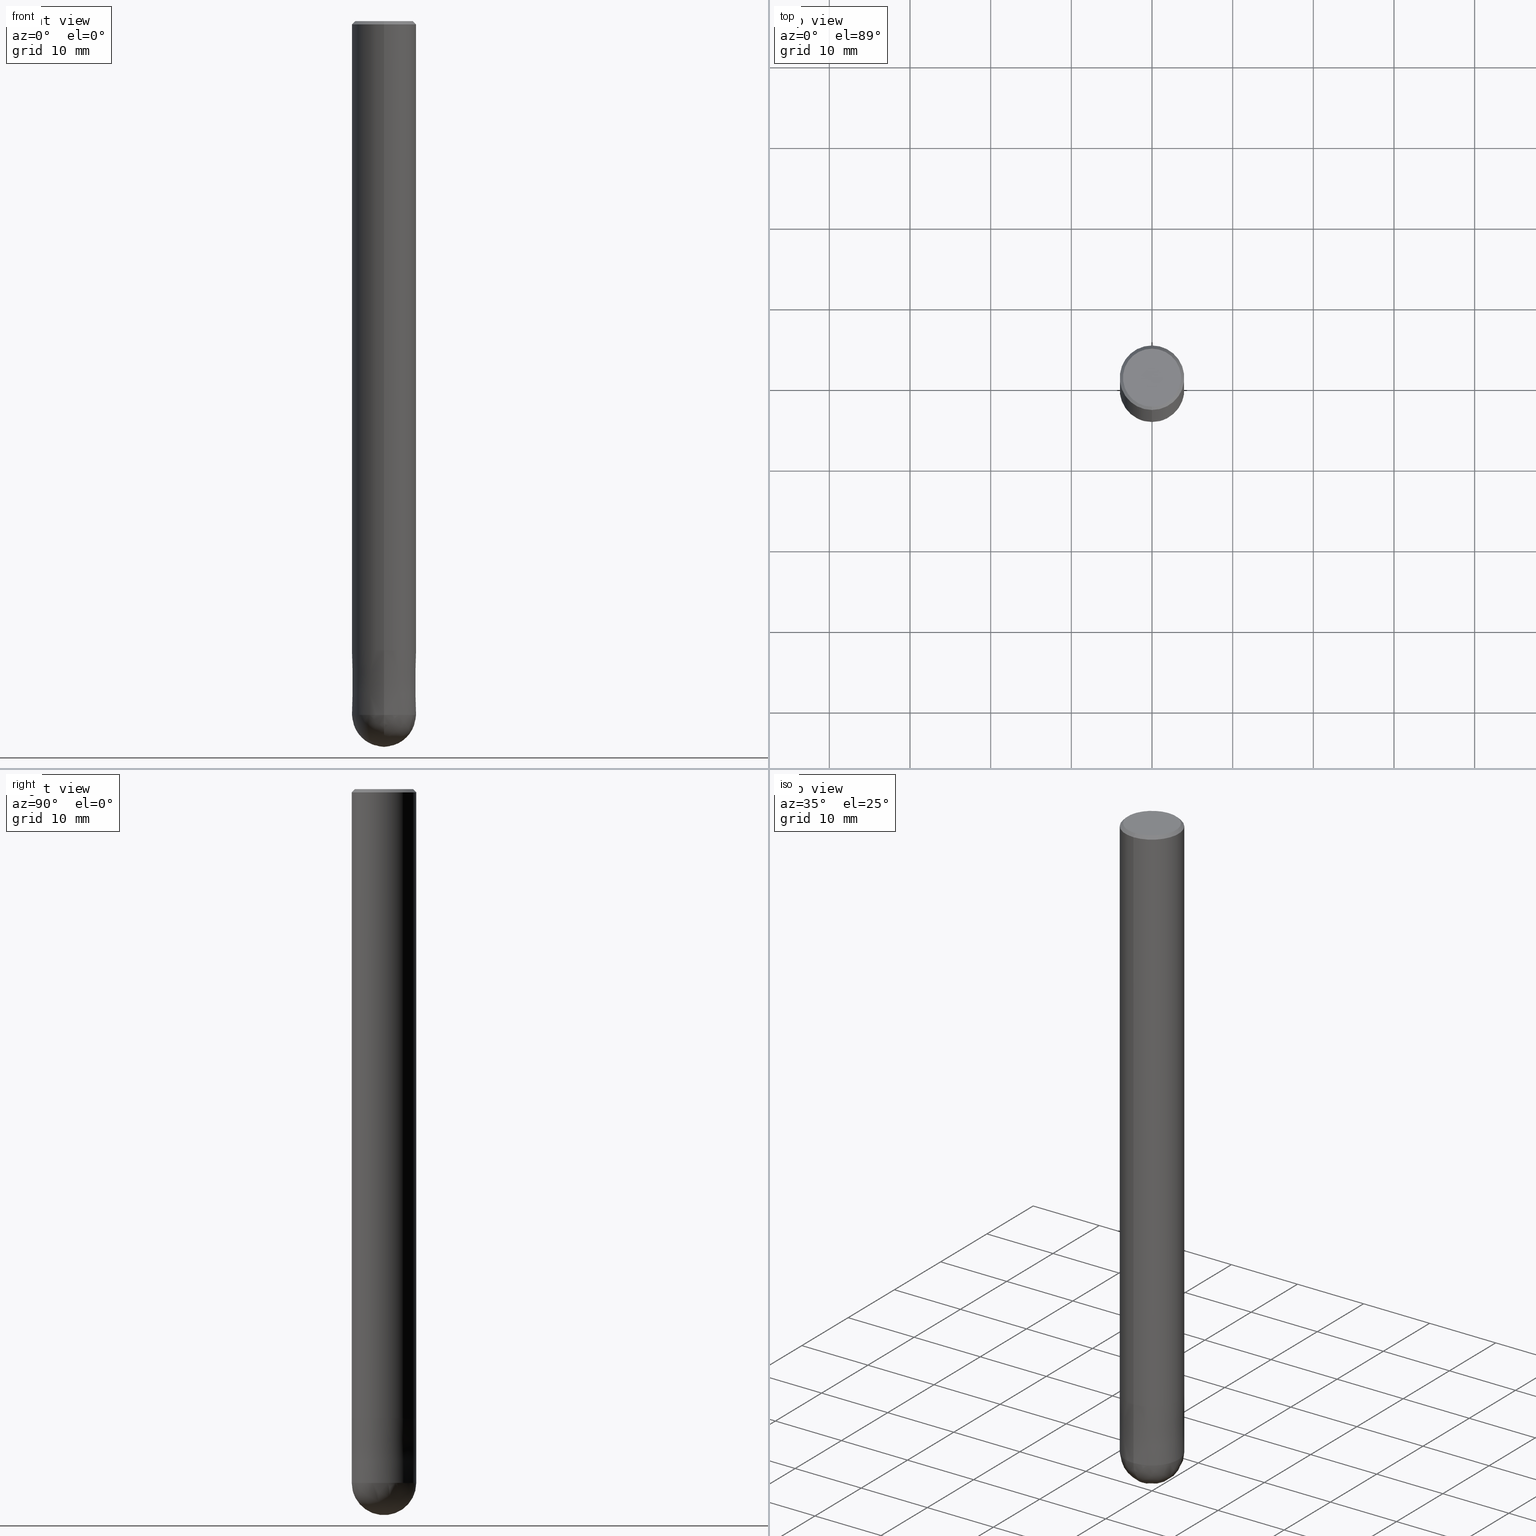
[diagram: canonical four-view strip — front | top / right | iso, engineering-drawing reading convention]
A machine part, canonical four-view strip (front | top / right | iso — engineering-drawing reading convention). The complete STEP part file that produces these views, byte-faithful:
ISO-10303-21;
HEADER;
FILE_DESCRIPTION(('no description'),'unknown implementation level');
FILE_NAME('HFB4080-1200-Huellk.stp','  ',('CIMSOURCE GmbH'),('CADClick - KiM GmbH - www.kimweb.de'),'unknown preprocess','ACIS','unknown authorization');
FILE_SCHEMA(('automotive_design'));
ENDSEC;
DATA;
#1=MECHANICAL_DESIGN_GEOMETRIC_PRESENTATION_REPRESENTATION(' ',(#10,#11,#12,#13,#14,#15,#16,#17,#18,#19,#20,#21,#22,#23,#24,#25,#26,#27,#28,#29,#30,#31,#32,#33,#34,#35,#36,#37,#38,#39,#40,#41,#42,#43,#44,#45,#46,#47),#6);
#2=PRODUCT_DEFINITION_CONTEXT('',#48,'design');
#3=APPLICATION_PROTOCOL_DEFINITION('INTERNATIONAL STANDARD','automotive_design',1994,#48);
#4=PRODUCT_CATEGORY_RELATIONSHIP('NONE','NONE',#49,#50);
#5=SHAPE_DEFINITION_REPRESENTATION(#51,#52);
#6= (GEOMETRIC_REPRESENTATION_CONTEXT(3)GLOBAL_UNCERTAINTY_ASSIGNED_CONTEXT((#55))GLOBAL_UNIT_ASSIGNED_CONTEXT((#57,#58,#59))REPRESENTATION_CONTEXT('NONE','WORKSPACE'));
#10=STYLED_ITEM('',(#61),#62);
#11=STYLED_ITEM('',(#63),#64);
#12=STYLED_ITEM('',(#65),#66);
#13=STYLED_ITEM('',(#67),#68);
#14=STYLED_ITEM('',(#69),#70);
#15=STYLED_ITEM('',(#71),#72);
#16=STYLED_ITEM('',(#73),#74);
#17=STYLED_ITEM('',(#75),#76);
#18=STYLED_ITEM('',(#77),#78);
#19=STYLED_ITEM('',(#79),#80);
#20=STYLED_ITEM('',(#81),#82);
#21=STYLED_ITEM('',(#83),#84);
#22=STYLED_ITEM('',(#85),#86);
#23=STYLED_ITEM('',(#87),#88);
#24=STYLED_ITEM('',(#89),#90);
#25=STYLED_ITEM('',(#91),#92);
#26=STYLED_ITEM('',(#93),#94);
#27=STYLED_ITEM('',(#95),#96);
#28=STYLED_ITEM('',(#97),#98);
#29=STYLED_ITEM('',(#99),#100);
#30=STYLED_ITEM('',(#101),#102);
#31=STYLED_ITEM('',(#103),#104);
#32=STYLED_ITEM('',(#105),#106);
#33=STYLED_ITEM('',(#107),#108);
#34=STYLED_ITEM('',(#109),#110);
#35=STYLED_ITEM('',(#111),#112);
#36=STYLED_ITEM('',(#113),#114);
#37=STYLED_ITEM('',(#115),#116);
#38=STYLED_ITEM('',(#117),#118);
#39=STYLED_ITEM('',(#119),#120);
#40=STYLED_ITEM('',(#121),#122);
#41=STYLED_ITEM('',(#123),#124);
#42=STYLED_ITEM('',(#125),#126);
#43=STYLED_ITEM('',(#127),#128);
#44=STYLED_ITEM('',(#129),#130);
#45=STYLED_ITEM('',(#131),#132);
#46=STYLED_ITEM('',(#133),#134);
#47=STYLED_ITEM('',(#135),#136);
#48=APPLICATION_CONTEXT(' ');
#49=PRODUCT_CATEGORY('part','NONE');
#50=PRODUCT_RELATED_PRODUCT_CATEGORY('detail',' ',(#137));
#51=PRODUCT_DEFINITION_SHAPE('NONE','NONE',#138);
#52=ADVANCED_BREP_SHAPE_REPRESENTATION('1',(#122,#139),#6);
#55=UNCERTAINTY_MEASURE_WITH_UNIT(LENGTH_MEASURE(1.0E-006),#57,'','');
#57= (CONVERSION_BASED_UNIT('MILLIMETRE',#142)LENGTH_UNIT()NAMED_UNIT(#145));
#58= (NAMED_UNIT(#147)PLANE_ANGLE_UNIT()SI_UNIT($,.RADIAN.));
#59= (NAMED_UNIT(#147)SOLID_ANGLE_UNIT()SI_UNIT($,.STERADIAN.));
#61=PRESENTATION_STYLE_ASSIGNMENT((#153));
#62=ADVANCED_FACE('',(#154,#155),#156,.T.);
#63=PRESENTATION_STYLE_ASSIGNMENT((#157));
#64=EDGE_CURVE('',#76,#74,#158,.T.);
#65=PRESENTATION_STYLE_ASSIGNMENT((#159));
#66=EDGE_CURVE('',#102,#100,#160,.T.);
#67=PRESENTATION_STYLE_ASSIGNMENT((#161));
#68=ADVANCED_FACE('',(#162),#163,.T.);
#69=PRESENTATION_STYLE_ASSIGNMENT((#164));
#70=ADVANCED_FACE('',(#165),#166,.T.);
#71=PRESENTATION_STYLE_ASSIGNMENT((#167));
#72=VERTEX_POINT('',#168);
#73=PRESENTATION_STYLE_ASSIGNMENT((#169));
#74=VERTEX_POINT('',#170);
#75=PRESENTATION_STYLE_ASSIGNMENT((#171));
#76=VERTEX_POINT('',#172);
#77=PRESENTATION_STYLE_ASSIGNMENT((#173));
#78=ADVANCED_FACE('',(#174),#175,.T.);
#79=PRESENTATION_STYLE_ASSIGNMENT((#176));
#80=VERTEX_POINT('',#177);
#81=PRESENTATION_STYLE_ASSIGNMENT((#178));
#82=VERTEX_POINT('',#179);
#83=PRESENTATION_STYLE_ASSIGNMENT((#180));
#84=EDGE_CURVE('',#72,#82,#181,.T.);
#85=PRESENTATION_STYLE_ASSIGNMENT((#182));
#86=EDGE_CURVE('',#74,#102,#183,.T.);
#87=PRESENTATION_STYLE_ASSIGNMENT((#184));
#88=EDGE_CURVE('',#128,#80,#185,.T.);
#89=PRESENTATION_STYLE_ASSIGNMENT((#186));
#90=ADVANCED_FACE('',(#187),#188,.T.);
#91=PRESENTATION_STYLE_ASSIGNMENT((#189));
#92=EDGE_CURVE('',#100,#76,#190,.T.);
#93=PRESENTATION_STYLE_ASSIGNMENT((#191));
#94=ADVANCED_FACE('',(#192),#193,.T.);
#95=PRESENTATION_STYLE_ASSIGNMENT((#194));
#96=ADVANCED_FACE('',(#195),#196,.T.);
#97=PRESENTATION_STYLE_ASSIGNMENT((#197));
#98=EDGE_CURVE('',#82,#72,#198,.T.);
#99=PRESENTATION_STYLE_ASSIGNMENT((#199));
#100=VERTEX_POINT('',#200);
#101=PRESENTATION_STYLE_ASSIGNMENT((#201));
#102=VERTEX_POINT('',#202);
#103=PRESENTATION_STYLE_ASSIGNMENT((#203));
#104=VERTEX_POINT('',#204);
#105=PRESENTATION_STYLE_ASSIGNMENT((#205));
#106=EDGE_CURVE('',#132,#104,#206,.T.);
#107=PRESENTATION_STYLE_ASSIGNMENT((#207));
#108=EDGE_CURVE('',#104,#132,#208,.T.);
#109=PRESENTATION_STYLE_ASSIGNMENT((#209));
#110=EDGE_CURVE('',#82,#80,#210,.T.);
#111=PRESENTATION_STYLE_ASSIGNMENT((#211));
#112=EDGE_CURVE('',#100,#102,#212,.T.);
#113=PRESENTATION_STYLE_ASSIGNMENT((#213));
#114=EDGE_CURVE('',#132,#100,#214,.T.);
#115=PRESENTATION_STYLE_ASSIGNMENT((#215));
#116=EDGE_CURVE('',#74,#76,#216,.T.);
#117=PRESENTATION_STYLE_ASSIGNMENT((#217));
#118=EDGE_CURVE('',#80,#128,#218,.T.);
#119=PRESENTATION_STYLE_ASSIGNMENT((#219));
#120=EDGE_CURVE('',#82,#72,#220,.T.);
#121=PRESENTATION_STYLE_ASSIGNMENT((#221));
#122=MANIFOLD_SOLID_BREP('1',#222);
#123=PRESENTATION_STYLE_ASSIGNMENT((#223));
#124=ADVANCED_FACE('',(#224),#225,.T.);
#125=PRESENTATION_STYLE_ASSIGNMENT((#226));
#126=ADVANCED_FACE('',(#227),#228,.T.);
#127=PRESENTATION_STYLE_ASSIGNMENT((#229));
#128=VERTEX_POINT('',#230);
#129=PRESENTATION_STYLE_ASSIGNMENT((#231));
#130=EDGE_CURVE('',#128,#72,#232,.T.);
#131=PRESENTATION_STYLE_ASSIGNMENT((#233));
#132=VERTEX_POINT('',#234);
#133=PRESENTATION_STYLE_ASSIGNMENT((#235));
#134=ADVANCED_FACE('',(#236),#237,.T.);
#135=PRESENTATION_STYLE_ASSIGNMENT((#238));
#136=EDGE_CURVE('',#102,#104,#239,.T.);
#137=PRODUCT('1','1','PART-1-DESC',(#240));
#138=PRODUCT_DEFINITION('NONE','NONE',#241,#2);
#139=AXIS2_PLACEMENT_3D('',#242,#243,#244);
#142=LENGTH_MEASURE_WITH_UNIT(LENGTH_MEASURE(1.0),#245);
#145=DIMENSIONAL_EXPONENTS(1.0,0.0,0.0,0.0,0.0,0.0,0.0);
#147=DIMENSIONAL_EXPONENTS(0.0,0.0,0.0,0.0,0.0,0.0,0.0);
#153=SURFACE_STYLE_USAGE(.BOTH.,#246);
#154=FACE_OUTER_BOUND('',#247,.T.);
#155=FACE_BOUND('',#248,.T.);
#156=PLANE('',#249);
#157=CURVE_STYLE('',#250,POSITIVE_LENGTH_MEASURE(1.0E-006),#251);
#158=CIRCLE('',#252,4.0);
#159=CURVE_STYLE('',#253,POSITIVE_LENGTH_MEASURE(1.0E-006),#254);
#160=CIRCLE('',#255,4.0);
#161=SURFACE_STYLE_USAGE(.BOTH.,#256);
#162=FACE_OUTER_BOUND('',#257,.T.);
#163=SPHERICAL_SURFACE('',#258,4.00000000000001);
#164=SURFACE_STYLE_USAGE(.BOTH.,#259);
#165=FACE_OUTER_BOUND('',#260,.T.);
#166=SPHERICAL_SURFACE('',#261,4.00000000000001);
#167=POINT_STYLE(' ',#262,POSITIVE_LENGTH_MEASURE(1.0E-006),#263);
#168=CARTESIAN_POINT('',(0.0,4.0,-86.0));
#169=POINT_STYLE(' ',#264,POSITIVE_LENGTH_MEASURE(1.0E-006),#265);
#170=CARTESIAN_POINT('',(4.89842541528951E-016,-4.0,-78.0));
#171=POINT_STYLE(' ',#266,POSITIVE_LENGTH_MEASURE(1.0E-006),#267);
#172=CARTESIAN_POINT('',(0.0,4.0,-78.0));
#173=SURFACE_STYLE_USAGE(.BOTH.,#268);
#174=FACE_OUTER_BOUND('',#269,.T.);
#175=CONICAL_SURFACE('',#270,3.8,0.785398163397441);
#176=POINT_STYLE(' ',#271,POSITIVE_LENGTH_MEASURE(1.0E-006),#272);
#177=CARTESIAN_POINT('',(4.89830295465413E-016,-3.9999,-78.0));
#178=POINT_STYLE(' ',#273,POSITIVE_LENGTH_MEASURE(1.0E-006),#274);
#179=CARTESIAN_POINT('',(4.89842541528951E-016,-4.0,-86.0));
#180=CURVE_STYLE('',#275,POSITIVE_LENGTH_MEASURE(1.0E-006),#276);
#181=CIRCLE('',#277,4.0);
#182=CURVE_STYLE('',#278,POSITIVE_LENGTH_MEASURE(1.0E-006),#279);
#183=LINE('',#280,#281);
#184=CURVE_STYLE('',#282,POSITIVE_LENGTH_MEASURE(1.0E-006),#283);
#185=CIRCLE('',#284,3.9999);
#186=SURFACE_STYLE_USAGE(.BOTH.,#285);
#187=FACE_OUTER_BOUND('',#286,.T.);
#188=CONICAL_SURFACE('',#287,3.99995,1.24999999993753E-005);
#189=CURVE_STYLE('',#288,POSITIVE_LENGTH_MEASURE(1.0E-006),#289);
#190=LINE('',#290,#291);
#191=SURFACE_STYLE_USAGE(.BOTH.,#292);
#192=FACE_OUTER_BOUND('',#293,.T.);
#193=CONICAL_SURFACE('',#294,3.99995,1.24999999993753E-005);
#194=SURFACE_STYLE_USAGE(.BOTH.,#295);
#195=FACE_OUTER_BOUND('',#296,.T.);
#196=CONICAL_SURFACE('',#297,3.8,0.785398163397441);
#197=CURVE_STYLE('',#298,POSITIVE_LENGTH_MEASURE(1.0E-006),#299);
#198=CIRCLE('',#300,4.00000000000001);
#199=POINT_STYLE(' ',#301,POSITIVE_LENGTH_MEASURE(1.0E-006),#302);
#200=CARTESIAN_POINT('',(0.0,4.0,-0.400000000000006));
#201=POINT_STYLE(' ',#303,POSITIVE_LENGTH_MEASURE(1.0E-006),#304);
#202=CARTESIAN_POINT('',(4.89842541528951E-016,-4.0,-0.400000000000006));
#203=POINT_STYLE(' ',#305,POSITIVE_LENGTH_MEASURE(1.0E-006),#306);
#204=CARTESIAN_POINT('',(4.40858287376056E-016,-3.6,0.0));
#205=CURVE_STYLE('',#307,POSITIVE_LENGTH_MEASURE(1.0E-006),#308);
#206=CIRCLE('',#309,3.6);
#207=CURVE_STYLE('',#310,POSITIVE_LENGTH_MEASURE(1.0E-006),#311);
#208=CIRCLE('',#312,3.6);
#209=CURVE_STYLE('',#313,POSITIVE_LENGTH_MEASURE(1.0E-006),#314);
#210=LINE('',#315,#316);
#211=CURVE_STYLE('',#317,POSITIVE_LENGTH_MEASURE(1.0E-006),#318);
#212=CIRCLE('',#319,4.0);
#213=CURVE_STYLE('',#320,POSITIVE_LENGTH_MEASURE(1.0E-006),#321);
#214=LINE('',#322,#323);
#215=CURVE_STYLE('',#324,POSITIVE_LENGTH_MEASURE(1.0E-006),#325);
#216=CIRCLE('',#326,4.0);
#217=CURVE_STYLE('',#327,POSITIVE_LENGTH_MEASURE(1.0E-006),#328);
#218=CIRCLE('',#329,3.9999);
#219=CURVE_STYLE('',#330,POSITIVE_LENGTH_MEASURE(1.0E-006),#331);
#220=CIRCLE('',#332,4.0);
#221=SURFACE_STYLE_USAGE(.BOTH.,#333);
#222=CLOSED_SHELL('',(#68,#94,#124,#96,#62,#126,#78,#134,#90,#70));
#223=SURFACE_STYLE_USAGE(.BOTH.,#334);
#224=FACE_OUTER_BOUND('',#335,.T.);
#225=CYLINDRICAL_SURFACE('',#336,4.0);
#226=SURFACE_STYLE_USAGE(.BOTH.,#337);
#227=FACE_OUTER_BOUND('',#338,.T.);
#228=PLANE('',#339);
#229=POINT_STYLE(' ',#340,POSITIVE_LENGTH_MEASURE(1.0E-006),#341);
#230=CARTESIAN_POINT('',(0.0,3.9999,-78.0));
#231=CURVE_STYLE('',#342,POSITIVE_LENGTH_MEASURE(1.0E-006),#343);
#232=LINE('',#344,#345);
#233=POINT_STYLE(' ',#346,POSITIVE_LENGTH_MEASURE(1.0E-006),#347);
#234=CARTESIAN_POINT('',(0.0,3.6,0.0));
#235=SURFACE_STYLE_USAGE(.BOTH.,#348);
#236=FACE_OUTER_BOUND('',#349,.T.);
#237=CYLINDRICAL_SURFACE('',#350,4.0);
#238=CURVE_STYLE('',#351,POSITIVE_LENGTH_MEASURE(1.0E-006),#352);
#239=LINE('',#353,#354);
#240=PRODUCT_CONTEXT('',#48,'mechanical');
#241=PRODUCT_DEFINITION_FORMATION_WITH_SPECIFIED_SOURCE(' ','NONE',#137,.NOT_KNOWN.);
#242=CARTESIAN_POINT('',(0.0,0.0,0.0));
#243=DIRECTION('',(0.0,0.0,1.0));
#244=DIRECTION('',(1.0,0.0,0.0));
#245= (NAMED_UNIT(#145)LENGTH_UNIT()SI_UNIT(.MILLI.,.METRE.));
#246=SURFACE_SIDE_STYLE('',(#356));
#247=EDGE_LOOP('',(#357,#358));
#248=EDGE_LOOP('',(#359,#360));
#249=AXIS2_PLACEMENT_3D('',#361,#362,#363);
#250=DRAUGHTING_PRE_DEFINED_CURVE_FONT('continuous');
#251=COLOUR_RGB('',0.498039215803146,0.498039215803146,0.498039215803146);
#252=AXIS2_PLACEMENT_3D('',#364,#365,#366);
#253=DRAUGHTING_PRE_DEFINED_CURVE_FONT('continuous');
#254=COLOUR_RGB('',0.498039215803146,0.498039215803146,0.498039215803146);
#255=AXIS2_PLACEMENT_3D('',#367,#368,#369);
#256=SURFACE_SIDE_STYLE('',(#370));
#257=EDGE_LOOP('',(#371,#372));
#258=AXIS2_PLACEMENT_3D('',#373,#374,#375);
#259=SURFACE_SIDE_STYLE('',(#376));
#260=EDGE_LOOP('',(#377,#378));
#261=AXIS2_PLACEMENT_3D('',#379,#380,#381);
#262=PRE_DEFINED_MARKER('');
#263=COLOUR_RGB('',0.800000011920929,0.800000011920929,0.800000011920929);
#264=PRE_DEFINED_MARKER('');
#265=COLOUR_RGB('',0.498039215803146,0.498039215803146,0.498039215803146);
#266=PRE_DEFINED_MARKER('');
#267=COLOUR_RGB('',0.498039215803146,0.498039215803146,0.498039215803146);
#268=SURFACE_SIDE_STYLE('',(#382));
#269=EDGE_LOOP('',(#383,#384,#385,#386));
#270=AXIS2_PLACEMENT_3D('',#387,#388,#389);
#271=PRE_DEFINED_MARKER('');
#272=COLOUR_RGB('',0.800000011920929,0.800000011920929,0.800000011920929);
#273=PRE_DEFINED_MARKER('');
#274=COLOUR_RGB('',0.800000011920929,0.800000011920929,0.800000011920929);
#275=DRAUGHTING_PRE_DEFINED_CURVE_FONT('continuous');
#276=COLOUR_RGB('',0.800000011920929,0.800000011920929,0.800000011920929);
#277=AXIS2_PLACEMENT_3D('',#390,#391,#392);
#278=DRAUGHTING_PRE_DEFINED_CURVE_FONT('continuous');
#279=COLOUR_RGB('',0.498039215803146,0.498039215803146,0.498039215803146);
#280=CARTESIAN_POINT('',(4.89842541528951E-016,-4.0,-39.2));
#281=VECTOR('',#393,1.0);
#282=DRAUGHTING_PRE_DEFINED_CURVE_FONT('continuous');
#283=COLOUR_RGB('',0.800000011920929,0.800000011920929,0.800000011920929);
#284=AXIS2_PLACEMENT_3D('',#394,#395,#396);
#285=SURFACE_SIDE_STYLE('',(#397));
#286=EDGE_LOOP('',(#398,#399,#400,#401));
#287=AXIS2_PLACEMENT_3D('',#402,#403,#404);
#288=DRAUGHTING_PRE_DEFINED_CURVE_FONT('continuous');
#289=COLOUR_RGB('',0.498039215803146,0.498039215803146,0.498039215803146);
#290=CARTESIAN_POINT('',(-4.89842541528951E-016,4.0,-39.2));
#291=VECTOR('',#405,1.0);
#292=SURFACE_SIDE_STYLE('',(#406));
#293=EDGE_LOOP('',(#407,#408,#409,#410));
#294=AXIS2_PLACEMENT_3D('',#411,#412,#413);
#295=SURFACE_SIDE_STYLE('',(#414));
#296=EDGE_LOOP('',(#415,#416,#417,#418));
#297=AXIS2_PLACEMENT_3D('',#419,#420,#421);
#298=DRAUGHTING_PRE_DEFINED_CURVE_FONT('continuous');
#299=COLOUR_RGB('',0.800000011920929,0.800000011920929,0.800000011920929);
#300=AXIS2_PLACEMENT_3D('',#422,#423,#424);
#301=PRE_DEFINED_MARKER('');
#302=COLOUR_RGB('',0.498039215803146,0.498039215803146,0.498039215803146);
#303=PRE_DEFINED_MARKER('');
#304=COLOUR_RGB('',0.498039215803146,0.498039215803146,0.498039215803146);
#305=PRE_DEFINED_MARKER('');
#306=COLOUR_RGB('',0.498039215803146,0.498039215803146,0.498039215803146);
#307=DRAUGHTING_PRE_DEFINED_CURVE_FONT('continuous');
#308=COLOUR_RGB('',0.498039215803146,0.498039215803146,0.498039215803146);
#309=AXIS2_PLACEMENT_3D('',#425,#426,#427);
#310=DRAUGHTING_PRE_DEFINED_CURVE_FONT('continuous');
#311=COLOUR_RGB('',0.498039215803146,0.498039215803146,0.498039215803146);
#312=AXIS2_PLACEMENT_3D('',#428,#429,#430);
#313=DRAUGHTING_PRE_DEFINED_CURVE_FONT('continuous');
#314=COLOUR_RGB('',0.800000011920929,0.800000011920929,0.800000011920929);
#315=CARTESIAN_POINT('',(4.89836418497182E-016,-3.99995,-82.0));
#316=VECTOR('',#431,1.0);
#317=DRAUGHTING_PRE_DEFINED_CURVE_FONT('continuous');
#318=COLOUR_RGB('',0.498039215803146,0.498039215803146,0.498039215803146);
#319=AXIS2_PLACEMENT_3D('',#432,#433,#434);
#320=DRAUGHTING_PRE_DEFINED_CURVE_FONT('continuous');
#321=COLOUR_RGB('',0.498039215803146,0.498039215803146,0.498039215803146);
#322=CARTESIAN_POINT('',(-4.65350414452503E-016,3.8,-0.200000000000003));
#323=VECTOR('',#435,1.0);
#324=DRAUGHTING_PRE_DEFINED_CURVE_FONT('continuous');
#325=COLOUR_RGB('',0.498039215803146,0.498039215803146,0.498039215803146);
#326=AXIS2_PLACEMENT_3D('',#436,#437,#438);
#327=DRAUGHTING_PRE_DEFINED_CURVE_FONT('continuous');
#328=COLOUR_RGB('',0.800000011920929,0.800000011920929,0.800000011920929);
#329=AXIS2_PLACEMENT_3D('',#439,#440,#441);
#330=DRAUGHTING_PRE_DEFINED_CURVE_FONT('continuous');
#331=COLOUR_RGB('',0.800000011920929,0.800000011920929,0.800000011920929);
#332=AXIS2_PLACEMENT_3D('',#442,#443,#444);
#333=SURFACE_SIDE_STYLE('',(#445));
#334=SURFACE_SIDE_STYLE('',(#446));
#335=EDGE_LOOP('',(#447,#448,#449,#450));
#336=AXIS2_PLACEMENT_3D('',#451,#452,#453);
#337=SURFACE_SIDE_STYLE('',(#454));
#338=EDGE_LOOP('',(#455,#456));
#339=AXIS2_PLACEMENT_3D('',#457,#458,#459);
#340=PRE_DEFINED_MARKER('');
#341=COLOUR_RGB('',0.800000011920929,0.800000011920929,0.800000011920929);
#342=DRAUGHTING_PRE_DEFINED_CURVE_FONT('continuous');
#343=COLOUR_RGB('',0.800000011920929,0.800000011920929,0.800000011920929);
#344=CARTESIAN_POINT('',(-4.89836418497182E-016,3.99995,-82.0));
#345=VECTOR('',#460,1.0);
#346=PRE_DEFINED_MARKER('');
#347=COLOUR_RGB('',0.498039215803146,0.498039215803146,0.498039215803146);
#348=SURFACE_SIDE_STYLE('',(#461));
#349=EDGE_LOOP('',(#462,#463,#464,#465));
#350=AXIS2_PLACEMENT_3D('',#466,#467,#468);
#351=DRAUGHTING_PRE_DEFINED_CURVE_FONT('continuous');
#352=COLOUR_RGB('',0.498039215803146,0.498039215803146,0.498039215803146);
#353=CARTESIAN_POINT('',(4.65350414452503E-016,-3.8,-0.200000000000003));
#354=VECTOR('',#469,1.0);
#356=SURFACE_STYLE_FILL_AREA(#470);
#357=ORIENTED_EDGE('',*,*,#64,.T.);
#358=ORIENTED_EDGE('',*,*,#116,.T.);
#359=ORIENTED_EDGE('',*,*,#88,.F.);
#360=ORIENTED_EDGE('',*,*,#118,.F.);
#361=CARTESIAN_POINT('',(0.0,2.0,-78.0));
#362=DIRECTION('',(0.0,0.0,-1.0));
#363=DIRECTION('',(0.0,1.0,0.0));
#364=CARTESIAN_POINT('',(0.0,0.0,-78.0));
#365=DIRECTION('',(0.0,0.0,-1.0));
#366=DIRECTION('',(0.0,1.0,0.0));
#367=CARTESIAN_POINT('',(0.0,0.0,-0.400000000000006));
#368=DIRECTION('',(0.0,0.0,-1.0));
#369=DIRECTION('',(0.0,1.0,0.0));
#370=SURFACE_STYLE_FILL_AREA(#471);
#371=ORIENTED_EDGE('',*,*,#98,.F.);
#372=ORIENTED_EDGE('',*,*,#120,.T.);
#373=CARTESIAN_POINT('',(0.0,0.0,-86.0));
#374=DIRECTION('',(0.0,1.0,0.0));
#375=DIRECTION('',(0.0,0.0,-1.0));
#376=SURFACE_STYLE_FILL_AREA(#472);
#377=ORIENTED_EDGE('',*,*,#98,.T.);
#378=ORIENTED_EDGE('',*,*,#84,.T.);
#379=CARTESIAN_POINT('',(0.0,0.0,-86.0));
#380=DIRECTION('',(0.0,1.0,0.0));
#381=DIRECTION('',(0.0,0.0,-1.0));
#382=SURFACE_STYLE_FILL_AREA(#473);
#383=ORIENTED_EDGE('',*,*,#114,.T.);
#384=ORIENTED_EDGE('',*,*,#66,.F.);
#385=ORIENTED_EDGE('',*,*,#136,.T.);
#386=ORIENTED_EDGE('',*,*,#108,.T.);
#387=CARTESIAN_POINT('',(0.0,0.0,-0.200000000000003));
#388=DIRECTION('',(0.0,-0.0,-1.0));
#389=DIRECTION('',(0.0,1.0,0.0));
#390=CARTESIAN_POINT('',(0.0,0.0,-86.0));
#391=DIRECTION('',(0.0,0.0,-1.0));
#392=DIRECTION('',(0.0,1.0,0.0));
#393=DIRECTION('',(-0.0,-0.0,1.0));
#394=CARTESIAN_POINT('',(0.0,0.0,-78.0));
#395=DIRECTION('',(0.0,0.0,-1.0));
#396=DIRECTION('',(0.0,1.0,0.0));
#397=SURFACE_STYLE_FILL_AREA(#474);
#398=ORIENTED_EDGE('',*,*,#130,.T.);
#399=ORIENTED_EDGE('',*,*,#120,.F.);
#400=ORIENTED_EDGE('',*,*,#110,.T.);
#401=ORIENTED_EDGE('',*,*,#118,.T.);
#402=CARTESIAN_POINT('',(0.0,0.0,-82.0));
#403=DIRECTION('',(0.0,-0.0,-1.0));
#404=DIRECTION('',(0.0,1.0,0.0));
#405=DIRECTION('',(0.0,0.0,-1.0));
#406=SURFACE_STYLE_FILL_AREA(#475);
#407=ORIENTED_EDGE('',*,*,#130,.F.);
#408=ORIENTED_EDGE('',*,*,#88,.T.);
#409=ORIENTED_EDGE('',*,*,#110,.F.);
#410=ORIENTED_EDGE('',*,*,#84,.F.);
#411=CARTESIAN_POINT('',(0.0,0.0,-82.0));
#412=DIRECTION('',(0.0,-0.0,-1.0));
#413=DIRECTION('',(0.0,1.0,0.0));
#414=SURFACE_STYLE_FILL_AREA(#476);
#415=ORIENTED_EDGE('',*,*,#114,.F.);
#416=ORIENTED_EDGE('',*,*,#106,.T.);
#417=ORIENTED_EDGE('',*,*,#136,.F.);
#418=ORIENTED_EDGE('',*,*,#112,.F.);
#419=CARTESIAN_POINT('',(0.0,0.0,-0.200000000000003));
#420=DIRECTION('',(0.0,-0.0,-1.0));
#421=DIRECTION('',(0.0,1.0,0.0));
#422=CARTESIAN_POINT('',(0.0,0.0,-86.0));
#423=DIRECTION('',(1.0,0.0,1.22460635382238E-016));
#424=DIRECTION('',(-1.22460635382238E-016,0.0,1.0));
#425=CARTESIAN_POINT('',(0.0,0.0,0.0));
#426=DIRECTION('',(0.0,0.0,-1.0));
#427=DIRECTION('',(0.0,1.0,0.0));
#428=CARTESIAN_POINT('',(0.0,0.0,0.0));
#429=DIRECTION('',(0.0,0.0,-1.0));
#430=DIRECTION('',(0.0,1.0,0.0));
#431=DIRECTION('',(-1.53075794216161E-021,1.24999999990498E-005,0.999999999921875));
#432=CARTESIAN_POINT('',(0.0,0.0,-0.400000000000006));
#433=DIRECTION('',(0.0,0.0,-1.0));
#434=DIRECTION('',(0.0,1.0,0.0));
#435=DIRECTION('',(-8.65927457071929E-017,0.707106781186542,-0.707106781186553));
#436=CARTESIAN_POINT('',(0.0,0.0,-78.0));
#437=DIRECTION('',(0.0,0.0,-1.0));
#438=DIRECTION('',(0.0,1.0,0.0));
#439=CARTESIAN_POINT('',(0.0,0.0,-78.0));
#440=DIRECTION('',(0.0,0.0,-1.0));
#441=DIRECTION('',(0.0,1.0,0.0));
#442=CARTESIAN_POINT('',(0.0,0.0,-86.0));
#443=DIRECTION('',(0.0,0.0,-1.0));
#444=DIRECTION('',(0.0,1.0,0.0));
#445=SURFACE_STYLE_FILL_AREA(#477);
#446=SURFACE_STYLE_FILL_AREA(#478);
#447=ORIENTED_EDGE('',*,*,#92,.F.);
#448=ORIENTED_EDGE('',*,*,#112,.T.);
#449=ORIENTED_EDGE('',*,*,#86,.F.);
#450=ORIENTED_EDGE('',*,*,#64,.F.);
#451=CARTESIAN_POINT('',(0.0,0.0,-39.2));
#452=DIRECTION('',(-0.0,-0.0,1.0));
#453=DIRECTION('',(0.0,1.0,0.0));
#454=SURFACE_STYLE_FILL_AREA(#479);
#455=ORIENTED_EDGE('',*,*,#106,.F.);
#456=ORIENTED_EDGE('',*,*,#108,.F.);
#457=CARTESIAN_POINT('',(0.0,1.8,0.0));
#458=DIRECTION('',(-0.0,0.0,1.0));
#459=DIRECTION('',(0.0,-1.0,0.0));
#460=DIRECTION('',(-1.53075794216161E-021,1.24999999990498E-005,-0.999999999921875));
#461=SURFACE_STYLE_FILL_AREA(#480);
#462=ORIENTED_EDGE('',*,*,#92,.T.);
#463=ORIENTED_EDGE('',*,*,#116,.F.);
#464=ORIENTED_EDGE('',*,*,#86,.T.);
#465=ORIENTED_EDGE('',*,*,#66,.T.);
#466=CARTESIAN_POINT('',(0.0,0.0,-39.2));
#467=DIRECTION('',(-0.0,-0.0,1.0));
#468=DIRECTION('',(0.0,1.0,0.0));
#469=DIRECTION('',(-8.65927457071929E-017,0.707106781186542,0.707106781186553));
#470=FILL_AREA_STYLE('',(#481));
#471=FILL_AREA_STYLE('',(#482));
#472=FILL_AREA_STYLE('',(#483));
#473=FILL_AREA_STYLE('',(#484));
#474=FILL_AREA_STYLE('',(#485));
#475=FILL_AREA_STYLE('',(#486));
#476=FILL_AREA_STYLE('',(#487));
#477=FILL_AREA_STYLE('',(#488));
#478=FILL_AREA_STYLE('',(#489));
#479=FILL_AREA_STYLE('',(#490));
#480=FILL_AREA_STYLE('',(#491));
#481=FILL_AREA_STYLE_COLOUR('',#492);
#482=FILL_AREA_STYLE_COLOUR('',#493);
#483=FILL_AREA_STYLE_COLOUR('',#494);
#484=FILL_AREA_STYLE_COLOUR('',#495);
#485=FILL_AREA_STYLE_COLOUR('',#496);
#486=FILL_AREA_STYLE_COLOUR('',#497);
#487=FILL_AREA_STYLE_COLOUR('',#498);
#488=FILL_AREA_STYLE_COLOUR('',#499);
#489=FILL_AREA_STYLE_COLOUR('',#500);
#490=FILL_AREA_STYLE_COLOUR('',#501);
#491=FILL_AREA_STYLE_COLOUR('',#502);
#492=COLOUR_RGB('',0.498039215803146,0.498039215803146,0.498039215803146);
#493=COLOUR_RGB('',0.800000011920929,0.800000011920929,0.800000011920929);
#494=COLOUR_RGB('',0.800000011920929,0.800000011920929,0.800000011920929);
#495=COLOUR_RGB('',0.498039215803146,0.498039215803146,0.498039215803146);
#496=COLOUR_RGB('',0.800000011920929,0.800000011920929,0.800000011920929);
#497=COLOUR_RGB('',0.800000011920929,0.800000011920929,0.800000011920929);
#498=COLOUR_RGB('',0.498039215803146,0.498039215803146,0.498039215803146);
#499=COLOUR_RGB('',0.800000011920929,0.800000011920929,0.800000011920929);
#500=COLOUR_RGB('',0.498039215803146,0.498039215803146,0.498039215803146);
#501=COLOUR_RGB('',0.498039215803146,0.498039215803146,0.498039215803146);
#502=COLOUR_RGB('',0.498039215803146,0.498039215803146,0.498039215803146);
#503=AXIS2_PLACEMENT_3D('PCS',#504,#505,#506);
#504=CARTESIAN_POINT('',(0.0,0.0,0.0));
#505=DIRECTION('',(0.0,0.0,1.0));
#506=DIRECTION('',(1.0,0.0,0.0));
#507=AXIS2_PLACEMENT_3D('CIP',#508,#509,#510);
#508=CARTESIAN_POINT('',(0.0,0.0,-90.0));
#509=DIRECTION('',(0.0,0.0,1.0));
#510=DIRECTION('',(1.0,0.0,0.0));
#511=AXIS2_PLACEMENT_3D('CRP',#512,#513,#514);
#512=CARTESIAN_POINT('',(-4.0,0.0,-90.0));
#513=DIRECTION('',(0.0,0.0,1.0));
#514=DIRECTION('',(1.0,0.0,0.0));
#515=AXIS2_PLACEMENT_3D('MCS',#516,#517,#518);
#516=CARTESIAN_POINT('',(0.0,0.0,-78.0));
#517=DIRECTION('',(0.0,0.0,1.0));
#518=DIRECTION('',(1.0,0.0,0.0));
#519=CONSTRUCTIVE_GEOMETRY_REPRESENTATION_RELATIONSHIP('coordinate systems',$,#52,#520);
#520=CONSTRUCTIVE_GEOMETRY_REPRESENTATION('coordinate systems',(#503,#507,#511,#515),#6);
ENDSEC;
END-ISO-10303-21;
